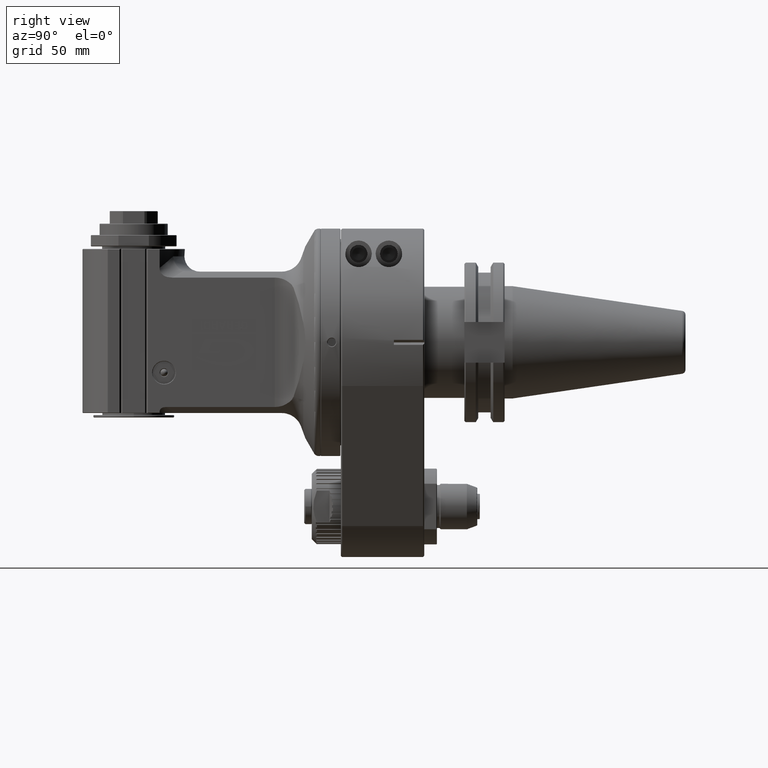
[diagram: clean part render]
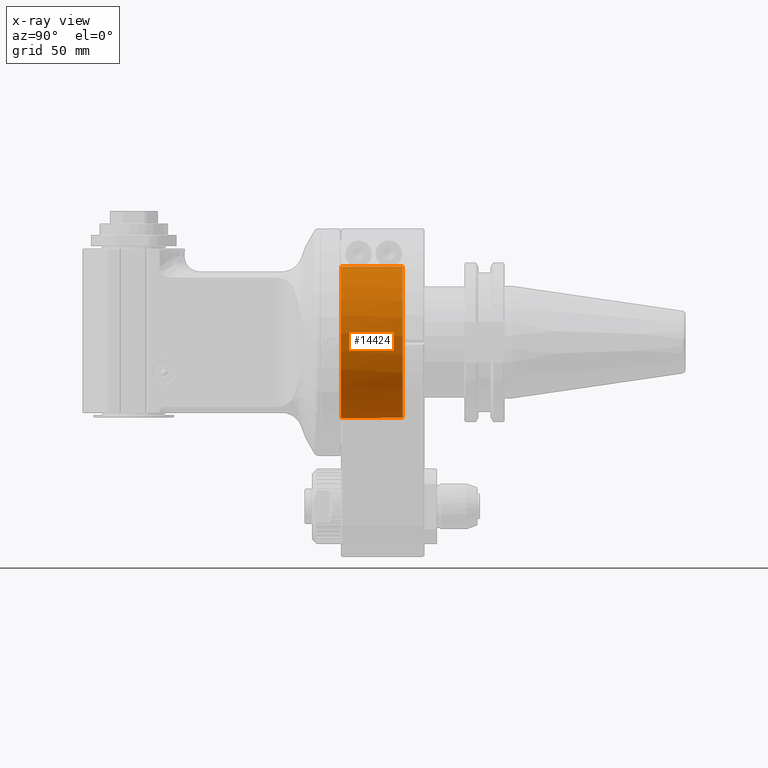
[diagram: x-ray — body ghosted, one internal face saturated and labeled with its STEP entity id]
A machine part, right view, then the same camera in x-ray: the body is ghosted and one INTERNAL B-rep face — a face not visible from any outside direction — is saturated and labeled: STEP entity #14424.
In plain terms, the highlighted cylindrical surface (bore or boss wall) has radius 30 mm, axis along (0, -1, -0).
Its self-contained STEP definition (entity closure, byte-faithful):
#1205=CIRCLE('',#15879,30.);
#1214=CIRCLE('',#15889,30.);
#1215=CIRCLE('',#15890,30.);
#1404=CYLINDRICAL_SURFACE('',#15888,30.);
#2193=FACE_OUTER_BOUND('',#3089,.T.);
#3089=EDGE_LOOP('',(#13102,#13103,#13104,#13105,#13106));
#4292=LINE('',#26704,#5491);
#5491=VECTOR('',#19872,30.);
#6854=VERTEX_POINT('',#26684);
#6863=VERTEX_POINT('',#26703);
#6864=VERTEX_POINT('',#26705);
#8943=EDGE_CURVE('',#6854,#6854,#1205,.T.);
#8952=EDGE_CURVE('',#6854,#6863,#4292,.T.);
#8953=EDGE_CURVE('',#6864,#6863,#1214,.T.);
#8954=EDGE_CURVE('',#6863,#6864,#1215,.T.);
#13102=ORIENTED_EDGE('',*,*,#8943,.T.);
#13103=ORIENTED_EDGE('',*,*,#8952,.T.);
#13104=ORIENTED_EDGE('',*,*,#8953,.F.);
#13105=ORIENTED_EDGE('',*,*,#8954,.F.);
#13106=ORIENTED_EDGE('',*,*,#8952,.F.);
#14424=ADVANCED_FACE('',(#2193),#1404,.T.);
#15879=AXIS2_PLACEMENT_3D('',#26685,#19852,#19853);
#15888=AXIS2_PLACEMENT_3D('',#26702,#19870,#19871);
#15889=AXIS2_PLACEMENT_3D('',#26706,#19873,#19874);
#15890=AXIS2_PLACEMENT_3D('',#26707,#19875,#19876);
#19852=DIRECTION('center_axis',(0.,1.,0.));
#19853=DIRECTION('ref_axis',(0.,0.,1.));
#19870=DIRECTION('center_axis',(0.,-1.,0.));
#19871=DIRECTION('ref_axis',(0.,0.,-1.));
#19872=DIRECTION('',(0.,1.,0.));
#19873=DIRECTION('center_axis',(0.,1.,0.));
#19874=DIRECTION('ref_axis',(0.,0.,1.));
#19875=DIRECTION('center_axis',(0.,1.,0.));
#19876=DIRECTION('ref_axis',(0.,0.,1.));
#26684=CARTESIAN_POINT('',(-3.67394039744206E-15,25.,30.));
#26685=CARTESIAN_POINT('Origin',(0.,25.,0.));
#26702=CARTESIAN_POINT('Origin',(0.,55.35,0.));
#26703=CARTESIAN_POINT('',(-3.67394039744206E-15,49.50001419696,30.));
#26704=CARTESIAN_POINT('',(-3.67394039744206E-15,55.35,30.));
#26705=CARTESIAN_POINT('',(-30.0000000000024,49.5000141969624,1.40443331533376E-14));
#26706=CARTESIAN_POINT('Origin',(0.,49.50001419696,0.));
#26707=CARTESIAN_POINT('Origin',(0.,49.50001419696,0.));